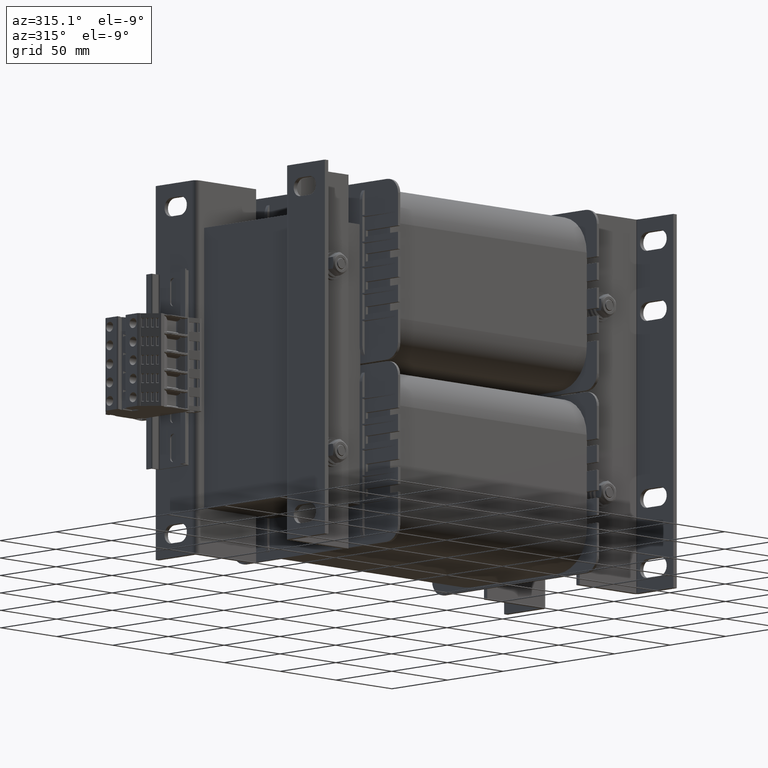
[diagram: clean part render]
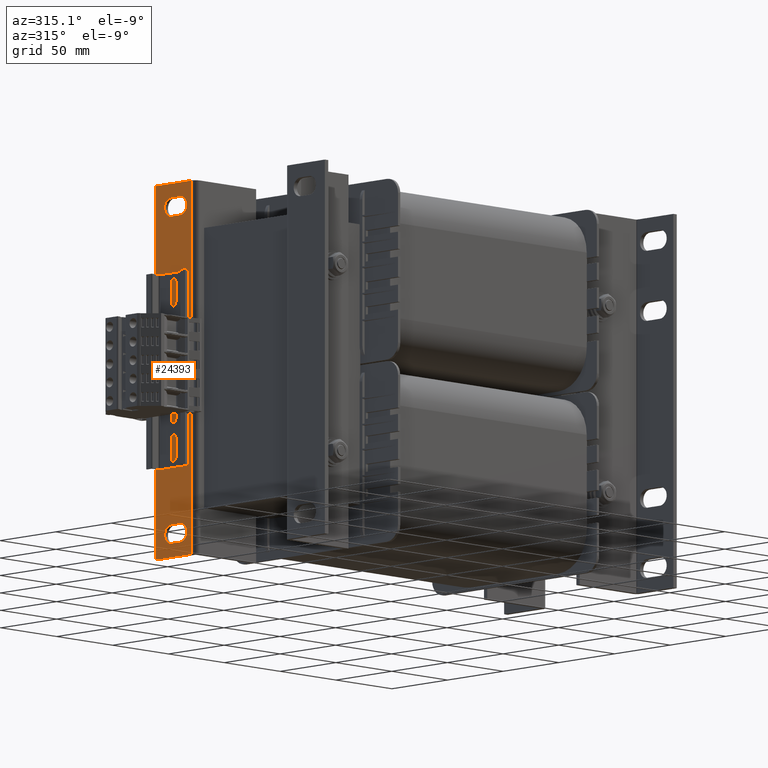
[diagram: same view with one face highlighted and labeled with its STEP entity id]
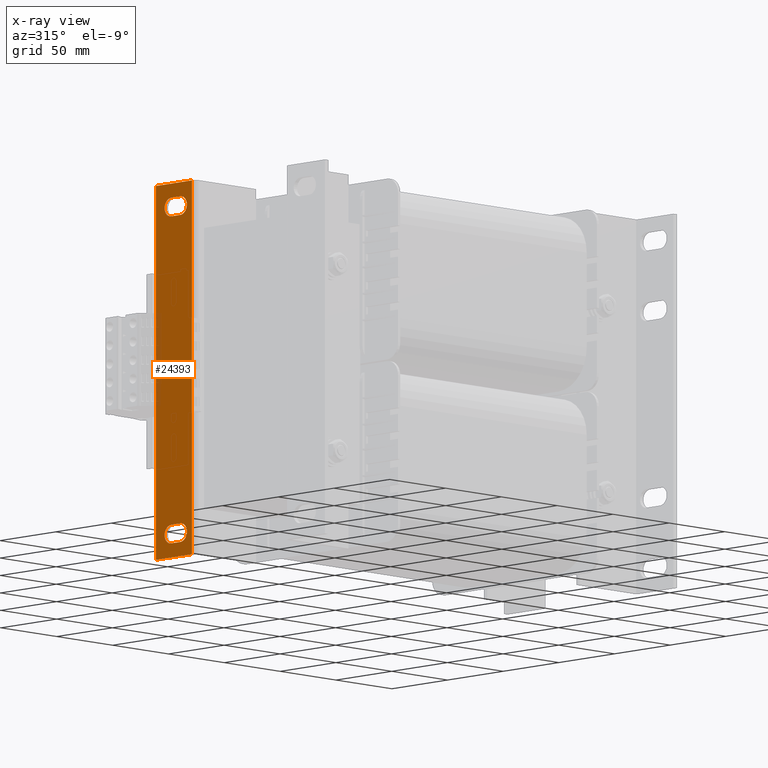
[diagram: x-ray of the same camera — body ghosted, the highlighted face saturated]
A machine part, auxiliary view. The second image highlights one B-rep face of the part: STEP entity #24393.
The next image is the same camera in x-ray: the body ghosted, the highlighted face saturated — about 4% of this face is hidden behind the body in this view.
In plain terms, the highlighted planar face has unit normal (1, -0, -0).
Its self-contained STEP definition (entity closure, byte-faithful):
#1041=FACE_BOUND('',#3820,.T.);
#1042=FACE_BOUND('',#3821,.T.);
#1137=CIRCLE('',#26074,6.00000000000001);
#1139=CIRCLE('',#26078,6.00000000000001);
#1141=CIRCLE('',#26082,6.);
#1143=CIRCLE('',#26086,6.);
#2439=FACE_OUTER_BOUND('',#3819,.T.);
#3819=EDGE_LOOP('',(#16588,#16589,#16590,#16591));
#3820=EDGE_LOOP('',(#16592,#16593,#16594,#16595));
#3821=EDGE_LOOP('',(#16596,#16597,#16598,#16599));
#5266=LINE('',#35650,#7863);
#5270=LINE('',#35661,#7867);
#5274=LINE('',#35674,#7871);
#5278=LINE('',#35685,#7875);
#5280=LINE('',#35690,#7877);
#5285=LINE('',#35703,#7882);
#5292=LINE('',#35721,#7889);
#5294=LINE('',#35724,#7891);
#7863=VECTOR('',#28520,10.);
#7867=VECTOR('',#28532,10.);
#7871=VECTOR('',#28544,10.);
#7875=VECTOR('',#28556,10.);
#7877=VECTOR('',#28560,10.);
#7882=VECTOR('',#28571,10.);
#7889=VECTOR('',#28590,10.);
#7891=VECTOR('',#28594,10.);
#10448=VERTEX_POINT('',#35640);
#10449=VERTEX_POINT('',#35641);
#10452=VERTEX_POINT('',#35649);
#10454=VERTEX_POINT('',#35655);
#10456=VERTEX_POINT('',#35664);
#10457=VERTEX_POINT('',#35665);
#10460=VERTEX_POINT('',#35673);
#10462=VERTEX_POINT('',#35679);
#10464=VERTEX_POINT('',#35688);
#10465=VERTEX_POINT('',#35689);
#10470=VERTEX_POINT('',#35701);
#10475=VERTEX_POINT('',#35720);
#12797=EDGE_CURVE('',#10448,#10449,#1137,.T.);
#12801=EDGE_CURVE('',#10452,#10448,#5266,.T.);
#12804=EDGE_CURVE('',#10454,#10452,#1139,.T.);
#12807=EDGE_CURVE('',#10449,#10454,#5270,.T.);
#12809=EDGE_CURVE('',#10456,#10457,#1141,.T.);
#12813=EDGE_CURVE('',#10460,#10456,#5274,.T.);
#12816=EDGE_CURVE('',#10462,#10460,#1143,.T.);
#12819=EDGE_CURVE('',#10457,#10462,#5278,.T.);
#12821=EDGE_CURVE('',#10464,#10465,#5280,.T.);
#12828=EDGE_CURVE('',#10470,#10465,#5285,.T.);
#12837=EDGE_CURVE('',#10464,#10475,#5292,.T.);
#12839=EDGE_CURVE('',#10475,#10470,#5294,.T.);
#16588=ORIENTED_EDGE('',*,*,#12821,.T.);
#16589=ORIENTED_EDGE('',*,*,#12828,.F.);
#16590=ORIENTED_EDGE('',*,*,#12839,.F.);
#16591=ORIENTED_EDGE('',*,*,#12837,.F.);
#16592=ORIENTED_EDGE('',*,*,#12797,.T.);
#16593=ORIENTED_EDGE('',*,*,#12807,.T.);
#16594=ORIENTED_EDGE('',*,*,#12804,.T.);
#16595=ORIENTED_EDGE('',*,*,#12801,.T.);
#16596=ORIENTED_EDGE('',*,*,#12809,.T.);
#16597=ORIENTED_EDGE('',*,*,#12819,.T.);
#16598=ORIENTED_EDGE('',*,*,#12816,.T.);
#16599=ORIENTED_EDGE('',*,*,#12813,.T.);
#23534=PLANE('',#26100);
#24393=ADVANCED_FACE('',(#2439,#1041,#1042),#23534,.F.);
#26074=AXIS2_PLACEMENT_3D('',#35642,#28512,#28513);
#26078=AXIS2_PLACEMENT_3D('',#35656,#28525,#28526);
#26082=AXIS2_PLACEMENT_3D('',#35666,#28536,#28537);
#26086=AXIS2_PLACEMENT_3D('',#35680,#28549,#28550);
#26100=AXIS2_PLACEMENT_3D('',#35725,#28595,#28596);
#28512=DIRECTION('center_axis',(1.,-1.6053061929773E-15,-2.9665254108841E-16));
#28513=DIRECTION('ref_axis',(0.,-4.38181919739341E-31,-1.));
#28520=DIRECTION('',(-1.6053061929773E-15,-1.,4.75266105871134E-31));
#28525=DIRECTION('center_axis',(1.,-1.6053061929773E-15,-2.9665254108841E-16));
#28526=DIRECTION('ref_axis',(1.10933564796705E-30,7.40148683083436E-16,
1.));
#28532=DIRECTION('',(1.6053061929773E-15,1.,-4.75266105871134E-31));
#28536=DIRECTION('center_axis',(1.,-1.6053061929773E-15,-2.9665254108841E-16));
#28537=DIRECTION('ref_axis',(-3.7007434154172E-16,-7.40148683083439E-16,
-1.));
#28544=DIRECTION('',(-1.6053061929773E-15,-1.,5.55111512312579E-16));
#28549=DIRECTION('center_axis',(1.,-1.6053061929773E-15,-2.9665254108841E-16));
#28550=DIRECTION('ref_axis',(3.7007434154172E-16,3.70074341541719E-16,1.));
#28556=DIRECTION('',(1.6053061929773E-15,1.,-1.11022302462516E-15));
#28560=DIRECTION('',(2.9665254108841E-16,0.,1.));
#28571=DIRECTION('',(-1.52095144196648E-15,-1.,2.96059473233376E-16));
#28590=DIRECTION('',(1.71512449944288E-15,1.,-4.93038065763132E-31));
#28594=DIRECTION('',(2.96059473233375E-16,0.,1.));
#28595=DIRECTION('center_axis',(1.,-1.6053061929773E-15,-2.9665254108841E-16));
#28596=DIRECTION('ref_axis',(2.9665254108841E-16,2.96059473233375E-16,1.));
#35640=CARTESIAN_POINT('',(-53.9999999999999,14.,231.));
#35641=CARTESIAN_POINT('',(-53.9999999999999,14.,219.));
#35642=CARTESIAN_POINT('Origin',(-54.,14.,225.));
#35649=CARTESIAN_POINT('',(-53.9999999999999,22.,231.));
#35650=CARTESIAN_POINT('',(-53.9999999999999,20.1602876713083,231.));
#35655=CARTESIAN_POINT('',(-53.9999999999999,22.,219.));
#35656=CARTESIAN_POINT('Origin',(-53.9999999999999,22.,225.));
#35661=CARTESIAN_POINT('',(-53.9999999999999,16.1602876713083,219.));
#35664=CARTESIAN_POINT('',(-54.,14.,21.));
#35665=CARTESIAN_POINT('',(-54.,14.,9.00000000000001));
#35666=CARTESIAN_POINT('Origin',(-54.,14.,15.));
#35673=CARTESIAN_POINT('',(-54.,22.,21.));
#35674=CARTESIAN_POINT('',(-54.,20.1602876713083,21.));
#35679=CARTESIAN_POINT('',(-54.,22.,9.));
#35680=CARTESIAN_POINT('Origin',(-54.,22.,15.));
#35685=CARTESIAN_POINT('',(-54.,16.1602876713083,9.));
#35688=CARTESIAN_POINT('',(-54.,3.50000000000001,5.66691898895079E-15));
#35689=CARTESIAN_POINT('',(-53.9999999999999,3.50000000000001,240.));
#35690=CARTESIAN_POINT('',(-54.,3.50000000000001,120.));
#35701=CARTESIAN_POINT('',(-53.9999999999999,36.,240.));
#35703=CARTESIAN_POINT('',(-53.9999999999999,0.641150685233294,240.));
#35720=CARTESIAN_POINT('',(-54.,36.,5.66691898895078E-15));
#35721=CARTESIAN_POINT('',(-54.,3.50000000000001,5.66691898895079E-15));
#35724=CARTESIAN_POINT('',(-54.,36.,5.66691898895078E-15));
#35725=CARTESIAN_POINT('Origin',(-53.9999999999999,18.3205753426166,120.));